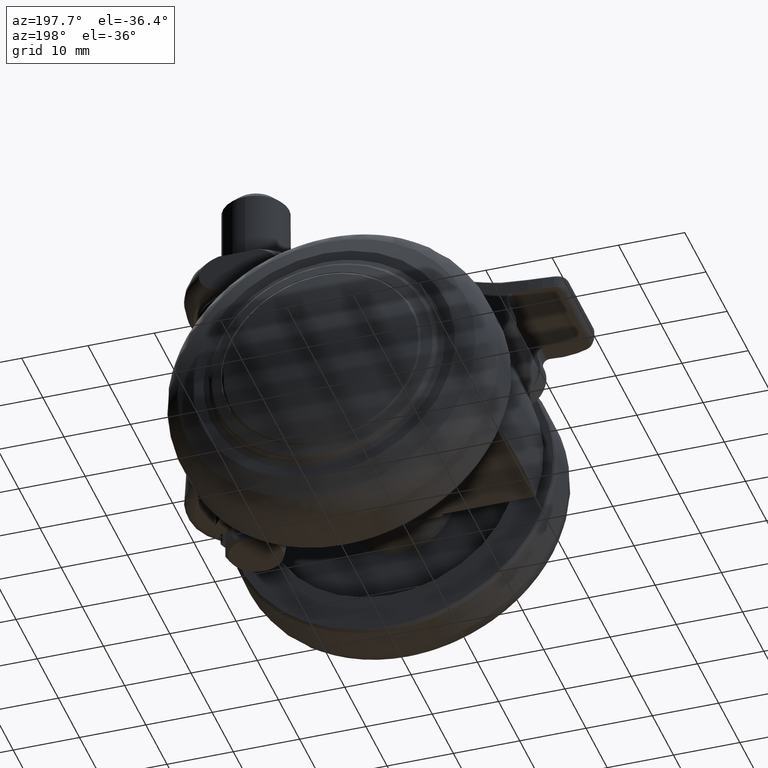
[diagram: clean part render]
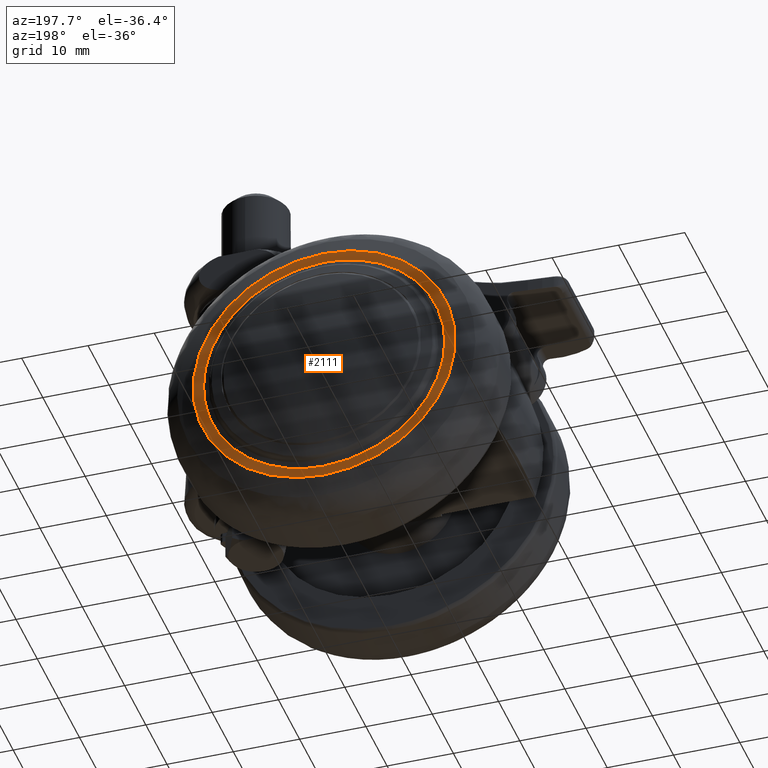
[diagram: same view with one face highlighted and labeled with its STEP entity id]
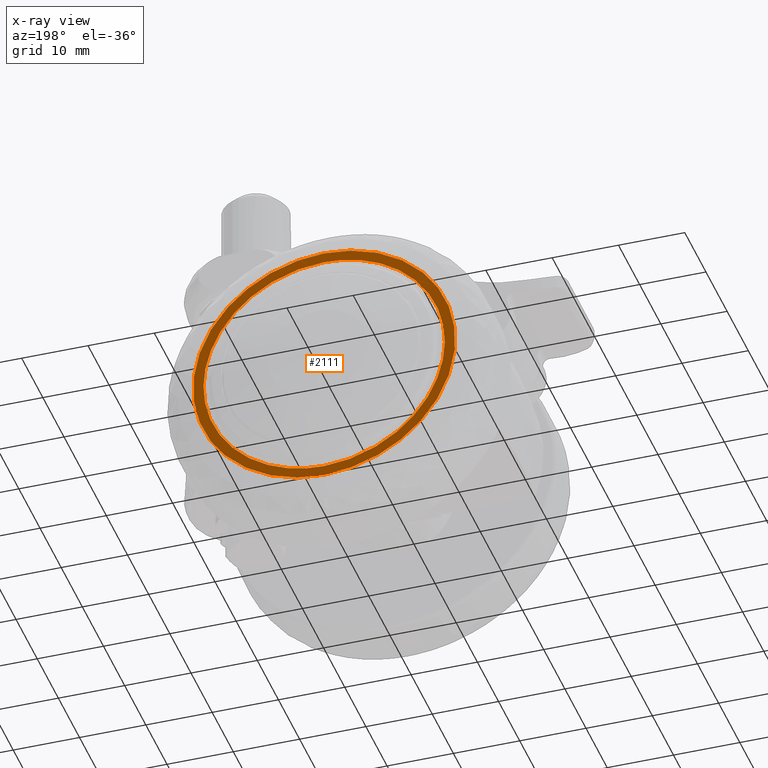
[diagram: x-ray of the same camera — body ghosted, the highlighted face saturated]
A machine part, auxiliary view. The second image highlights one B-rep face of the part: STEP entity #2111.
The next image is the same camera in x-ray: the body ghosted, the highlighted face saturated — about 0% of this face is hidden behind the body in this view.
In plain terms, the highlighted face is a freeform B-spline surface patch.
Its self-contained STEP definition (entity closure, byte-faithful):
#2023=CARTESIAN_POINT('',(0.0,-21.081931999999899,-18.191763477110101));
#2024=VERTEX_POINT('',#2023);
#2025=CARTESIAN_POINT('',(0.0,-21.081931999999899,18.191763477110101));
#2026=VERTEX_POINT('',#2025);
#2027=CARTESIAN_POINT('',(0.0,-21.081931999999899,-18.191763477110101));
#2028=CARTESIAN_POINT('',(18.191763477110104,-21.081931999999895,-18.191763477110104));
#2029=CARTESIAN_POINT('',(18.191763477110101,-21.081931999999899,1.789254E-015));
#2030=CARTESIAN_POINT('',(18.191763477110104,-21.081931999999895,18.191763477110104));
#2031=CARTESIAN_POINT('',(0.0,-21.081931999999899,18.191763477110101));
#2039=(BOUNDED_CURVE()B_SPLINE_CURVE(2,(#2027,#2028,#2029,#2030,#2031),.UNSPECIFIED.,.F.,.U.)B_SPLINE_CURVE_WITH_KNOTS((3,2,3),(0.0,0.250000000000000,0.500000000000000),.UNSPECIFIED.)CURVE()GEOMETRIC_REPRESENTATION_ITEM()RATIONAL_B_SPLINE_CURVE((1.0,0.707106781186547,1.0,0.707106781186547,1.0))REPRESENTATION_ITEM(''));
#2040=EDGE_CURVE('',#2024,#2026,#2039,.T.);
#2042=CARTESIAN_POINT('',(0.0,-21.081931999999899,18.191763477110101));
#2043=CARTESIAN_POINT('',(-18.191763477110104,-21.081931999999895,18.191763477110104));
#2044=CARTESIAN_POINT('',(-18.191763477110101,-21.081931999999899,1.789254E-015));
#2045=CARTESIAN_POINT('',(-18.191763477110104,-21.081931999999895,-18.191763477110104));
#2046=CARTESIAN_POINT('',(0.0,-21.081931999999899,-18.191763477110101));
#2054=(BOUNDED_CURVE()B_SPLINE_CURVE(2,(#2042,#2043,#2044,#2045,#2046),.UNSPECIFIED.,.F.,.U.)B_SPLINE_CURVE_WITH_KNOTS((3,2,3),(0.500000000000000,0.750000000000000,1.0),.UNSPECIFIED.)CURVE()GEOMETRIC_REPRESENTATION_ITEM()RATIONAL_B_SPLINE_CURVE((1.0,0.707106781186547,1.0,0.707106781186547,1.0))REPRESENTATION_ITEM(''));
#2055=EDGE_CURVE('',#2026,#2024,#2054,.T.);
#2066=CARTESIAN_POINT('',(-21.740498557456359,-21.081931999999899,-21.740498557456370));
#2067=CARTESIAN_POINT('',(-21.740498557456359,-21.081931999999899,21.740499264339562));
#2068=CARTESIAN_POINT('',(21.740499264339530,-21.081931999999899,-21.740498557456370));
#2069=CARTESIAN_POINT('',(21.740499264339530,-21.081931999999899,21.740499264339562));
#2070=B_SPLINE_SURFACE_WITH_KNOTS('',1,1,((#2066,#2068),(#2067,#2069)),.UNSPECIFIED.,.F.,.F.,.U.,(2,2),(2,2),(0.0,43.480997821795931),(0.0,43.480997821795889),.UNSPECIFIED.);
#2071=CARTESIAN_POINT('',(0.0,-21.081931999999899,-19.765886228730452));
#2072=VERTEX_POINT('',#2071);
#2073=CARTESIAN_POINT('',(0.0,-21.081931999999899,19.765886228730459));
#2074=VERTEX_POINT('',#2073);
#2075=CARTESIAN_POINT('',(0.0,-21.081931999999899,-19.765886228730452));
#2076=CARTESIAN_POINT('',(19.765886228730455,-21.081931999999892,-19.765886228730455));
#2077=CARTESIAN_POINT('',(19.765886228730452,-21.081931999999899,1.789254E-015));
#2078=CARTESIAN_POINT('',(19.765886228730455,-21.081931999999892,19.765886228730455));
#2079=CARTESIAN_POINT('',(0.0,-21.081931999999899,19.765886228730459));
#2087=(BOUNDED_CURVE()B_SPLINE_CURVE(2,(#2075,#2076,#2077,#2078,#2079),.UNSPECIFIED.,.F.,.U.)B_SPLINE_CURVE_WITH_KNOTS((3,2,3),(0.0,0.250000000000000,0.500000000000000),.UNSPECIFIED.)CURVE()GEOMETRIC_REPRESENTATION_ITEM()RATIONAL_B_SPLINE_CURVE((1.0,0.707106781186548,1.0,0.707106781186548,1.0))REPRESENTATION_ITEM(''));
#2088=EDGE_CURVE('',#2072,#2074,#2087,.T.);
#2089=ORIENTED_EDGE('',*,*,#2088,.T.);
#2090=CARTESIAN_POINT('',(0.0,-21.081931999999899,19.765886228730459));
#2091=CARTESIAN_POINT('',(-19.765886228730455,-21.081931999999892,19.765886228730455));
#2092=CARTESIAN_POINT('',(-19.765886228730452,-21.081931999999899,1.789254E-015));
#2093=CARTESIAN_POINT('',(-19.765886228730455,-21.081931999999892,-19.765886228730455));
#2094=CARTESIAN_POINT('',(0.0,-21.081931999999899,-19.765886228730452));
#2102=(BOUNDED_CURVE()B_SPLINE_CURVE(2,(#2090,#2091,#2092,#2093,#2094),.UNSPECIFIED.,.F.,.U.)B_SPLINE_CURVE_WITH_KNOTS((3,2,3),(0.500000000000000,0.750000000000000,1.0),.UNSPECIFIED.)CURVE()GEOMETRIC_REPRESENTATION_ITEM()RATIONAL_B_SPLINE_CURVE((1.0,0.707106781186548,1.0,0.707106781186548,1.0))REPRESENTATION_ITEM(''));
#2103=EDGE_CURVE('',#2074,#2072,#2102,.T.);
#2104=ORIENTED_EDGE('',*,*,#2103,.T.);
#2105=EDGE_LOOP('',(#2089,#2104));
#2106=FACE_OUTER_BOUND('',#2105,.T.);
#2107=ORIENTED_EDGE('',*,*,#2040,.F.);
#2108=ORIENTED_EDGE('',*,*,#2055,.F.);
#2109=EDGE_LOOP('',(#2107,#2108));
#2110=FACE_BOUND('',#2109,.T.);
#2111=ADVANCED_FACE('',(#2106,#2110),#2070,.F.);